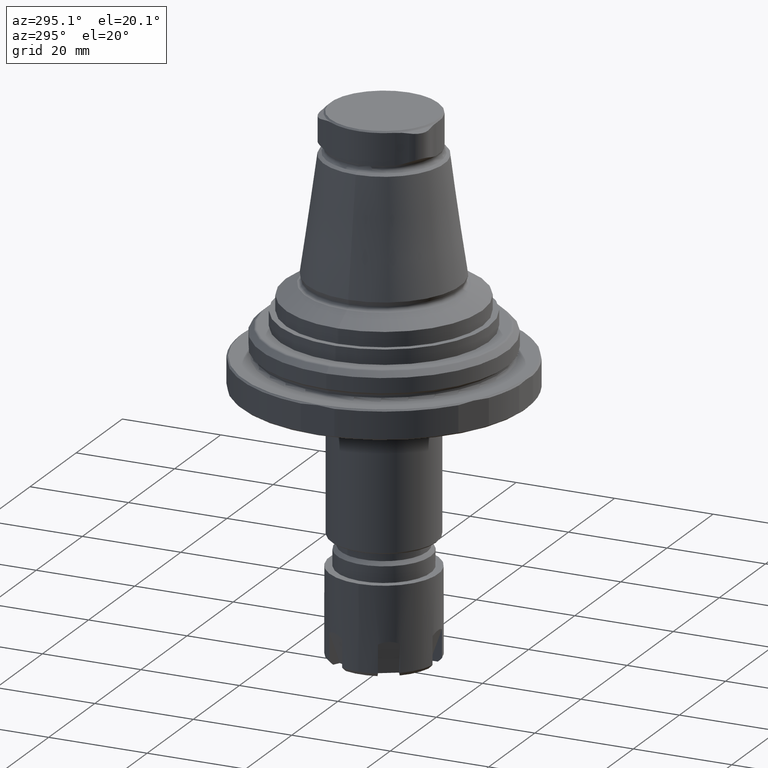
[diagram: clean part render]
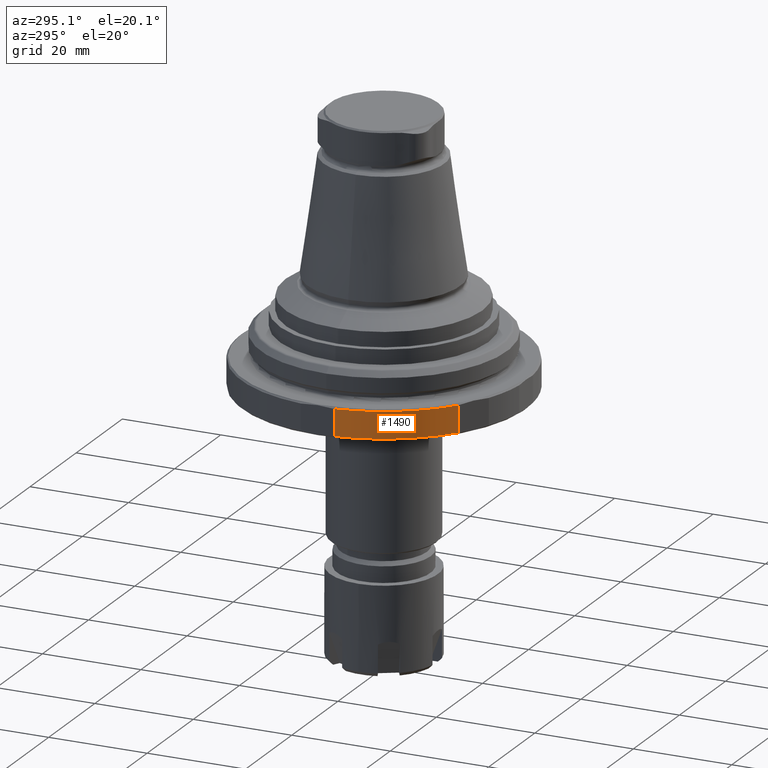
[diagram: same view with one face highlighted and labeled with its STEP entity id]
A machine part, auxiliary view. The second image highlights one B-rep face of the part: STEP entity #1490.
In plain terms, the highlighted cylindrical surface (partial cylindrical patch) has radius 29 mm, axis along (0, 0, -1).
Its self-contained STEP definition (entity closure, byte-faithful):
#136=LINE('',#2687,#206);
#137=LINE('',#2688,#207);
#206=VECTOR('',#2047,1000.);
#207=VECTOR('',#2048,1000.);
#244=CYLINDRICAL_SURFACE('',#1669,29.);
#601=ORIENTED_EDGE('',*,*,#862,.F.);
#602=ORIENTED_EDGE('',*,*,#866,.T.);
#603=ORIENTED_EDGE('',*,*,#838,.T.);
#604=ORIENTED_EDGE('',*,*,#867,.T.);
#838=EDGE_CURVE('',#1000,#999,#1087,.T.);
#862=EDGE_CURVE('',#1020,#1021,#1098,.T.);
#866=EDGE_CURVE('',#1020,#1000,#136,.F.);
#867=EDGE_CURVE('',#999,#1021,#137,.T.);
#999=VERTEX_POINT('',#2592);
#1000=VERTEX_POINT('',#2594);
#1020=VERTEX_POINT('',#2672);
#1021=VERTEX_POINT('',#2674);
#1087=CIRCLE('',#1654,29.);
#1098=CIRCLE('',#1667,29.);
#1205=EDGE_LOOP('',(#601,#602,#603,#604));
#1341=FACE_BOUND('',#1205,.T.);
#1490=ADVANCED_FACE('',(#1341),#244,.T.);
#1654=AXIS2_PLACEMENT_3D('',#2593,#2013,#2014);
#1667=AXIS2_PLACEMENT_3D('',#2673,#2041,#2042);
#1669=AXIS2_PLACEMENT_3D('',#2686,#2045,#2046);
#2013=DIRECTION('',(1.22464605849178E-16,1.04225259501902E-17,-1.));
#2014=DIRECTION('',(-1.,-1.84889274661175E-32,-1.22464605849178E-16));
#2041=DIRECTION('',(1.22464605849178E-16,1.04225259501902E-17,-1.));
#2042=DIRECTION('',(-1.,-1.84889274661175E-32,-1.22464605849178E-16));
#2045=DIRECTION('',(1.22464605849178E-16,1.04225259501902E-17,-1.));
#2046=DIRECTION('',(-1.,-1.84889274661175E-32,-1.22464605849178E-16));
#2047=DIRECTION('',(1.22464605849178E-16,1.04225259501902E-17,-1.));
#2048=DIRECTION('',(1.22464605849178E-16,1.04225259501902E-17,-1.));
#2592=CARTESIAN_POINT('',(-28.8,-3.39999999999998,-1.30000000000001));
#2593=CARTESIAN_POINT('',(5.18882886749478E-15,9.69294913367689E-17,-1.30000000000001));
#2594=CARTESIAN_POINT('',(-17.3444863728671,-23.2415316289919,-1.30000000000001));
#2672=CARTESIAN_POINT('',(-17.3444863728671,-23.2415316289919,-6.70000000000001));
#2673=CARTESIAN_POINT('',(5.85013773908035E-15,1.53211131467796E-16,-6.70000000000001));
#2674=CARTESIAN_POINT('',(-28.8,-3.39999999999998,-6.70000000000002));
#2686=CARTESIAN_POINT('',(5.15208948574003E-15,9.38027335517118E-17,-1.00000000000001));
#2687=CARTESIAN_POINT('',(-17.3444863728671,-23.2415316289919,-1.00000000000001));
#2688=CARTESIAN_POINT('',(-28.8,-3.39999999999998,-1.00000000000001));